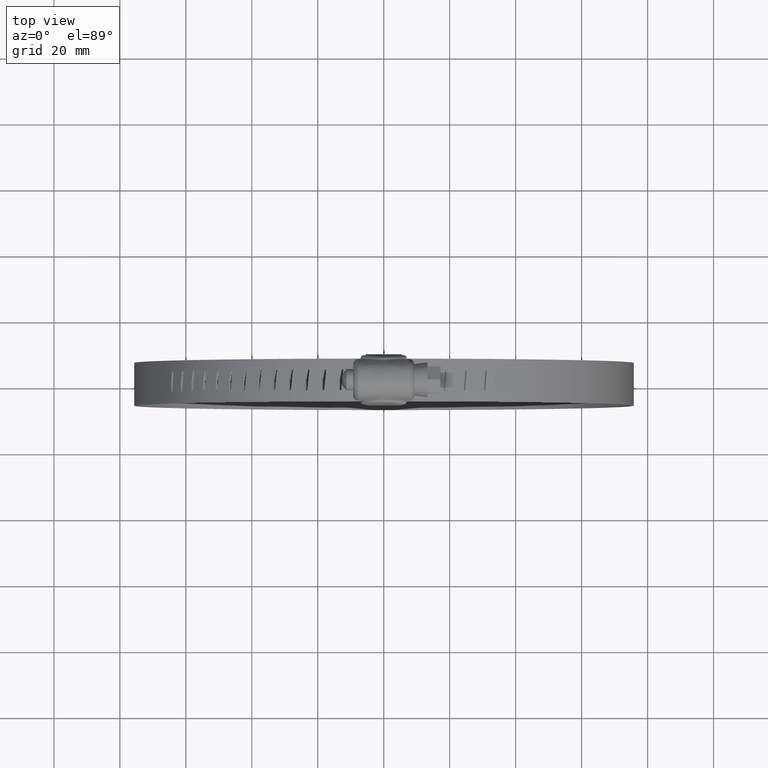
[diagram: clean part render]
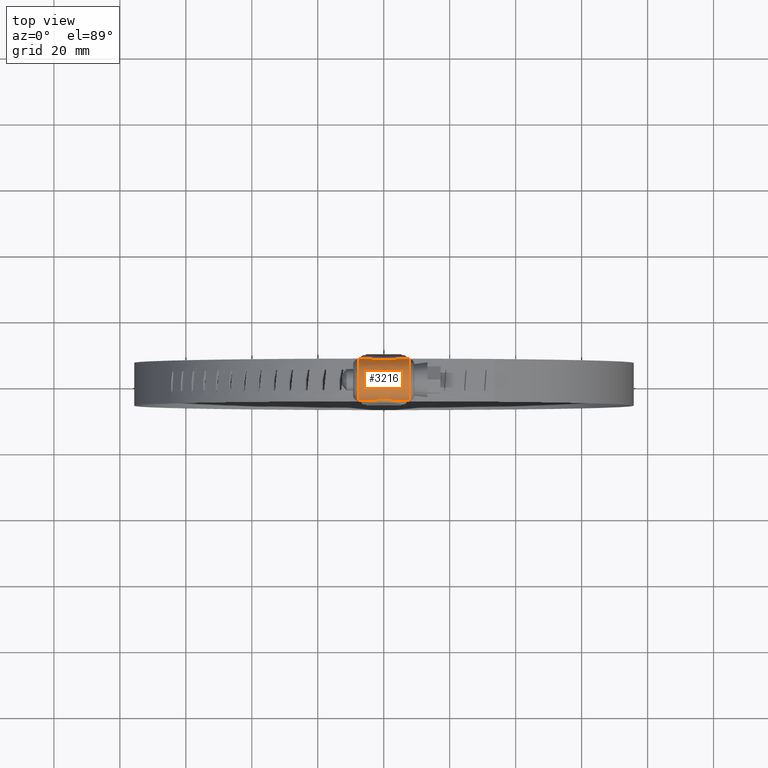
[diagram: same view with one face highlighted and labeled with its STEP entity id]
A machine part, top view. The second image highlights one B-rep face of the part: STEP entity #3216.
In plain terms, the highlighted face is a freeform B-spline surface patch.
Its self-contained STEP definition (entity closure, byte-faithful):
#1557=CARTESIAN_POINT('',(-3.766983245140355,-6.249999633170980,16.577121365332999));
#1558=VERTEX_POINT('',#1557);
#1668=CARTESIAN_POINT('',(3.766983245140355,-6.249999633170980,16.577121365332999));
#1669=VERTEX_POINT('',#1668);
#1677=CARTESIAN_POINT('',(-3.766983245140355,-6.249999633170980,16.577121365332999));
#1678=CARTESIAN_POINT('',(-3.478831496909463,-6.229233364205876,16.739128154655241));
#1679=CARTESIAN_POINT('',(-3.183300914378316,-6.204570008767342,16.882148632117168));
#1680=CARTESIAN_POINT('',(-2.576808892005547,-6.155228093785371,17.130036402120751));
#1681=CARTESIAN_POINT('',(-2.265836634976381,-6.130547265610534,17.234876518080021));
#1682=CARTESIAN_POINT('',(-1.866693869858923,-6.103751019367197,17.340919599546389));
#1683=CARTESIAN_POINT('',(-1.786486061357972,-6.098601892761600,17.360832235081901));
#1684=CARTESIAN_POINT('',(-1.626024433981459,-6.088846631766009,17.397907521513719));
#1685=CARTESIAN_POINT('',(-1.545665445436081,-6.084233341677489,17.415098594033861));
#1686=CARTESIAN_POINT('',(-1.304205280765513,-6.071283367227001,17.462673344400940));
#1687=CARTESIAN_POINT('',(-1.142721123573348,-6.063841070201703,17.489062200122419));
#1688=CARTESIAN_POINT('',(-0.656740159557208,-6.045693866015511,17.552452619586020));
#1689=CARTESIAN_POINT('',(-0.330719706065374,-6.039235105378521,17.573749912531952));
#1690=CARTESIAN_POINT('',(0.161419786626403,-6.039184386857341,17.573920279852860));
#1691=CARTESIAN_POINT('',(0.325985564198005,-6.040757096750824,17.568663909435760));
#1692=CARTESIAN_POINT('',(0.573631993009526,-6.045493593546023,17.552599085312352));
#1693=CARTESIAN_POINT('',(0.656241352251390,-6.047467871330164,17.545878086249040));
#1694=CARTESIAN_POINT('',(0.820475667525163,-6.052146371881373,17.529813216404978));
#1695=CARTESIAN_POINT('',(0.902253417529042,-6.054853191231874,17.520460500731989));
#1696=CARTESIAN_POINT('',(1.309472620170547,-6.070102513587345,17.467179843144940));
#1697=CARTESIAN_POINT('',(1.629917328613110,-6.087864840067938,17.403768142886481));
#1698=CARTESIAN_POINT('',(2.260627271324118,-6.130187882777850,17.236317853900928));
#1699=CARTESIAN_POINT('',(2.570888658853245,-6.154751397064583,17.132263968381999));
#1700=CARTESIAN_POINT('',(3.028839962946760,-6.192001216301294,16.945374784512900));
#1701=CARTESIAN_POINT('',(3.179777303179230,-6.204428908061730,16.878107182095970));
#1702=CARTESIAN_POINT('',(3.476686108309584,-6.228226204638982,16.734530296358798));
#1703=CARTESIAN_POINT('',(3.622917516897374,-6.239617229855899,16.658119055673680));
#1704=CARTESIAN_POINT('',(3.766983245140355,-6.249999633170980,16.577121365332999));
#1705=B_SPLINE_CURVE_WITH_KNOTS('',3,(#1677,#1678,#1679,#1680,#1681,#1682,#1683,#1684,#1685,#1686,#1687,#1688,#1689,#1690,#1691,#1692,#1693,#1694,#1695,#1696,#1697,#1698,#1699,#1700,#1701,#1702,#1703,#1704),.UNSPECIFIED.,.F.,.U.,(4,2,2,2,2,2,2,2,2,2,2,2,2,4),(0.000000039906754,0.125000000000001,0.250000000000001,0.281250000000001,0.312500000000001,0.375000000000001,0.500000000000001,0.562500000000001,0.593750000000001,0.625000000000000,0.750000000000000,0.875000000000000,0.937500000000000,0.999999982435041),.UNSPECIFIED.);
#1706=EDGE_CURVE('',#1558,#1669,#1705,.T.);
#1897=CARTESIAN_POINT('',(-3.767731017053410,6.249999633170980,16.577121365332999));
#1898=VERTEX_POINT('',#1897);
#1906=CARTESIAN_POINT('',(3.767731017053410,6.249999633170980,16.577121365332999));
#1907=VERTEX_POINT('',#1906);
#1908=CARTESIAN_POINT('',(3.767731017053410,6.249999633170980,16.577121365332999));
#1909=CARTESIAN_POINT('',(3.479497733507518,6.229237709105721,16.739094258291651));
#1910=CARTESIAN_POINT('',(3.183884050679524,6.204583222070062,16.882071151559519));
#1911=CARTESIAN_POINT('',(2.577243934754033,6.155257050299552,17.129902017543969));
#1912=CARTESIAN_POINT('',(2.266206147951572,6.130582696073145,17.234727400421061));
#1913=CARTESIAN_POINT('',(1.866991587071622,6.103790234875439,17.340766625409820));
#1914=CARTESIAN_POINT('',(1.786771470837745,6.098641773924828,17.360678763914390));
#1915=CARTESIAN_POINT('',(1.626284023453253,6.088887352445290,17.397754646818960));
#1916=CARTESIAN_POINT('',(1.545912167912042,6.084274283725710,17.414946625872581));
#1917=CARTESIAN_POINT('',(1.304413467685331,6.071324521135703,17.462525250646319));
#1918=CARTESIAN_POINT('',(1.142903704963588,6.063881763437935,17.488918202284239));
#1919=CARTESIAN_POINT('',(0.656845720759579,6.045732683460419,17.552320710697689));
#1920=CARTESIAN_POINT('',(0.330773580215899,6.039272260056391,17.573625094178219));
#1921=CARTESIAN_POINT('',(-0.161444854682112,6.039221514861135,17.573795563976041));
#1922=CARTESIAN_POINT('',(-0.326037165918512,6.040794574774885,17.568537633646770));
#1923=CARTESIAN_POINT('',(-0.573723678317318,6.045531948734165,17.552468569044731));
#1924=CARTESIAN_POINT('',(-0.656346915220894,6.047506583847865,17.545745815254921));
#1925=CARTESIAN_POINT('',(-0.820608736505639,6.052185828560140,17.529677062264259));
#1926=CARTESIAN_POINT('',(-0.902400225254582,6.054893035526168,17.520322214310770));
#1927=CARTESIAN_POINT('',(-1.309688241338812,6.070144131077192,17.467030690373669));
#1928=CARTESIAN_POINT('',(-1.630188360697988,6.087907219618561,17.403609516303838));
#1929=CARTESIAN_POINT('',(-2.261015828429809,6.130224851233542,17.236162525183840));
#1930=CARTESIAN_POINT('',(-2.571339628588592,6.154781890041164,17.132122576332680));
#1931=CARTESIAN_POINT('',(-3.029391561703454,6.192018955972971,16.945279975485011));
#1932=CARTESIAN_POINT('',(-3.180366883374803,6.204442304778198,16.878030458831791));
#1933=CARTESIAN_POINT('',(-3.477353567144340,6.228231820699066,16.734492306269210));
#1934=CARTESIAN_POINT('',(-3.623625442391634,6.239619468304403,16.658101592606808));
#1935=CARTESIAN_POINT('',(-3.767731017053410,6.249999633170980,16.577121365332999));
#1936=B_SPLINE_CURVE_WITH_KNOTS('',3,(#1908,#1909,#1910,#1911,#1912,#1913,#1914,#1915,#1916,#1917,#1918,#1919,#1920,#1921,#1922,#1923,#1924,#1925,#1926,#1927,#1928,#1929,#1930,#1931,#1932,#1933,#1934,#1935),.UNSPECIFIED.,.F.,.U.,(4,2,2,2,2,2,2,2,2,2,2,2,2,4),(0.000000039879375,0.125000000000000,0.250000000000001,0.281250000000000,0.312500000000000,0.375000000000000,0.500000000000000,0.562500000000000,0.593749999999999,0.624999999999999,0.749999999999999,0.875000000000000,0.937500000000000,0.999999982445228),.UNSPECIFIED.);
#1937=EDGE_CURVE('',#1907,#1898,#1936,.T.);
#2437=CARTESIAN_POINT('',(7.750000000000000,6.249999633170980,16.577121365332999));
#2438=VERTEX_POINT('',#2437);
#2495=CARTESIAN_POINT('',(7.750000000000000,-6.249999633170980,16.577121365332999));
#2496=VERTEX_POINT('',#2495);
#2530=CARTESIAN_POINT('',(7.750000000000000,-6.249999633170980,16.577121365332999));
#2531=CARTESIAN_POINT('',(7.749999999999998,-6.174907356142581,17.164435536031181));
#2532=CARTESIAN_POINT('',(7.750000000000002,-5.870134459006932,18.271372194721881));
#2533=CARTESIAN_POINT('',(7.749999999999998,-5.097753004421772,19.562651605448590));
#2534=CARTESIAN_POINT('',(7.750000000000002,-4.235892319970406,20.481451716410380));
#2535=CARTESIAN_POINT('',(7.749999999999998,-3.194024240430307,21.271090910051921));
#2536=CARTESIAN_POINT('',(7.750000000000000,-1.819788747553578,21.889523464576680));
#2537=CARTESIAN_POINT('',(7.750000000000000,-0.426973939353014,22.103034039541459));
#2538=CARTESIAN_POINT('',(7.750000000000004,0.782237661143752,22.055159540258831));
#2539=CARTESIAN_POINT('',(7.750000000000005,2.018835618874091,21.808206311708439));
#2540=CARTESIAN_POINT('',(7.750000000000018,3.212329838713227,21.254834628498369));
#2541=CARTESIAN_POINT('',(7.749999999999882,4.423859444145913,20.336980045318139));
#2542=CARTESIAN_POINT('',(7.750000000000373,5.336519008372862,19.259105849544468));
#2543=CARTESIAN_POINT('',(7.749999999999375,5.990479663879953,17.880927723327389));
#2544=CARTESIAN_POINT('',(7.750000000000652,6.195844887262550,16.999944789569980));
#2545=CARTESIAN_POINT('',(7.750000000000000,6.249999633170980,16.577121365332999));
#2546=B_SPLINE_CURVE_WITH_KNOTS('',3,(#2530,#2531,#2532,#2533,#2534,#2535,#2536,#2537,#2538,#2539,#2540,#2541,#2542,#2543,#2544,#2545),.UNSPECIFIED.,.F.,.U.,(4,1,1,1,1,1,1,1,1,1,1,1,1,4),(0.000000563087671,1.776239848328153,3.410450218943602,4.476221280167639,5.542017808670202,7.318301333918036,8.952501541620283,9.733954174792666,10.941793981680780,12.718120855092829,13.641811654884270,15.489173801185640,16.910237984713088,18.189077700280791),.UNSPECIFIED.);
#2547=EDGE_CURVE('',#2496,#2438,#2546,.T.);
#2631=CARTESIAN_POINT('',(-7.749999999999810,6.249999633170980,16.577121365332999));
#2632=VERTEX_POINT('',#2631);
#2689=CARTESIAN_POINT('',(-7.750000000000000,-6.249999633170980,16.577121365332999));
#2690=VERTEX_POINT('',#2689);
#2702=CARTESIAN_POINT('',(-7.749999999999810,6.249999633170980,16.577121365332999));
#2703=CARTESIAN_POINT('',(-7.749999999999828,6.174921407226658,17.164445979788638));
#2704=CARTESIAN_POINT('',(-7.749999999999828,5.939900885811858,18.017624379983420));
#2705=CARTESIAN_POINT('',(-7.749999999999874,5.285947765428807,19.282941451453649));
#2706=CARTESIAN_POINT('',(-7.749999999999906,4.465799178100260,20.309019970566141));
#2707=CARTESIAN_POINT('',(-7.749999999999930,3.368526281450023,21.149971762479542));
#2708=CARTESIAN_POINT('',(-7.749999999999947,2.344488911000150,21.653003118711212));
#2709=CARTESIAN_POINT('',(-7.749999999999976,1.300512586220451,21.974595808097991));
#2710=CARTESIAN_POINT('',(-7.749999999999981,0.095787334491232,22.124866310479462));
#2711=CARTESIAN_POINT('',(-7.750000000000053,-1.209754889798604,22.006750188906121));
#2712=CARTESIAN_POINT('',(-7.749999999999963,-2.323871580601000,21.663488429046019));
#2713=CARTESIAN_POINT('',(-7.750000000000264,-3.301212227720304,21.176473111229910));
#2714=CARTESIAN_POINT('',(-7.749999999999870,-4.111134377981805,20.591143438052718));
#2715=CARTESIAN_POINT('',(-7.749999999999981,-4.892784095287416,19.794389983055261));
#2716=CARTESIAN_POINT('',(-7.750000000000257,-5.448985818124200,18.993005069870460));
#2717=CARTESIAN_POINT('',(-7.749999999999892,-5.974127043384732,17.902669207948819));
#2718=CARTESIAN_POINT('',(-7.749999999999938,-6.180903936464116,17.117455725582818));
#2719=CARTESIAN_POINT('',(-7.750000000000000,-6.249999633170980,16.577121365332999));
#2720=B_SPLINE_CURVE_WITH_KNOTS('',3,(#2702,#2703,#2704,#2705,#2706,#2707,#2708,#2709,#2710,#2711,#2712,#2713,#2714,#2715,#2716,#2717,#2718,#2719),.UNSPECIFIED.,.F.,.U.,(4,1,1,1,1,1,1,1,1,1,1,1,1,1,1,4),(0.000000563086857,1.776239848327670,2.628839524853918,4.263063179301955,5.684122344069653,6.749920309933993,7.673602472321489,8.952501541619823,10.373428532576270,11.581299433354239,12.433909125302529,13.641811654883851,14.565481156719899,15.773359640029110,16.554935550017390,18.189077700280809),.UNSPECIFIED.);
#2721=EDGE_CURVE('',#2632,#2690,#2720,.T.);
#3148=CARTESIAN_POINT('',(7.750000000000000,-6.249999633170980,16.577121365332999));
#3149=CARTESIAN_POINT('',(3.766983245140355,-6.249999633170980,16.577121365332999));
#3150=QUASI_UNIFORM_CURVE('',1,(#3148,#3149),.UNSPECIFIED.,.F.,.U.);
#3151=EDGE_CURVE('',#2496,#1669,#3150,.T.);
#3170=CARTESIAN_POINT('',(-3.766983245140355,-6.249999633170980,16.577121365332999));
#3171=CARTESIAN_POINT('',(-7.750000000000000,-6.249999633170980,16.577121365332999));
#3172=QUASI_UNIFORM_CURVE('',1,(#3170,#3171),.UNSPECIFIED.,.F.,.U.);
#3173=EDGE_CURVE('',#1558,#2690,#3172,.T.);
#3180=CARTESIAN_POINT('',(8.137500000000001,6.256752797267127,16.522550016851341));
#3181=CARTESIAN_POINT('',(-8.147187500000037,6.256752797267127,16.522550016851341));
#3182=CARTESIAN_POINT('',(8.137500000000001,5.578620881440008,22.205784116358405));
#3183=CARTESIAN_POINT('',(-8.147187500000037,5.578620881440008,22.205784116358405));
#3184=CARTESIAN_POINT('',(8.137500000000001,-0.143444799420466,22.075488034368480));
#3185=CARTESIAN_POINT('',(-8.147187500000037,-0.143444799420466,22.075488034368480));
#3186=CARTESIAN_POINT('',(8.137500000000001,-5.865510480280938,21.945191952378561));
#3187=CARTESIAN_POINT('',(-8.147187500000037,-5.865510480280938,21.945191952378561));
#3188=CARTESIAN_POINT('',(8.137500000000001,-6.284249946758260,16.236981200813990));
#3189=CARTESIAN_POINT('',(-8.147187500000037,-6.284249946758260,16.236981200813990));
#3197=(BOUNDED_SURFACE()B_SPLINE_SURFACE(1,2,((#3180,#3182,#3184,#3186,#3188),(#3181,#3183,#3185,#3187,#3189)),.UNSPECIFIED.,.F.,.F.,.U.)B_SPLINE_SURFACE_WITH_KNOTS((2,2),(3,2,3),(0.0,16.284687500000040),(0.0,9.738261264178698,19.476522528357400),.UNSPECIFIED.)GEOMETRIC_REPRESENTATION_ITEM()RATIONAL_B_SPLINE_SURFACE(((1.0,0.740218127486832,1.0,0.740218127486832,1.0),(1.0,0.740218127486832,1.0,0.740218127486832,1.0)))REPRESENTATION_ITEM('')SURFACE());
#3198=CARTESIAN_POINT('',(7.750000000000000,6.249999633170980,16.577121365332999));
#3199=CARTESIAN_POINT('',(3.767731017053410,6.249999633170980,16.577121365332999));
#3200=QUASI_UNIFORM_CURVE('',1,(#3198,#3199),.UNSPECIFIED.,.F.,.U.);
#3201=EDGE_CURVE('',#2438,#1907,#3200,.T.);
#3202=ORIENTED_EDGE('',*,*,#3201,.T.);
#3203=ORIENTED_EDGE('',*,*,#1937,.T.);
#3204=CARTESIAN_POINT('',(-3.767731017053410,6.249999633170980,16.577121365332999));
#3205=CARTESIAN_POINT('',(-7.749999999999810,6.249999633170980,16.577121365332999));
#3206=QUASI_UNIFORM_CURVE('',1,(#3204,#3205),.UNSPECIFIED.,.F.,.U.);
#3207=EDGE_CURVE('',#1898,#2632,#3206,.T.);
#3208=ORIENTED_EDGE('',*,*,#3207,.T.);
#3209=ORIENTED_EDGE('',*,*,#2721,.T.);
#3210=ORIENTED_EDGE('',*,*,#3173,.F.);
#3211=ORIENTED_EDGE('',*,*,#1706,.T.);
#3212=ORIENTED_EDGE('',*,*,#3151,.F.);
#3213=ORIENTED_EDGE('',*,*,#2547,.T.);
#3214=EDGE_LOOP('',(#3202,#3203,#3208,#3209,#3210,#3211,#3212,#3213));
#3215=FACE_OUTER_BOUND('',#3214,.T.);
#3216=ADVANCED_FACE('',(#3215),#3197,.T.);